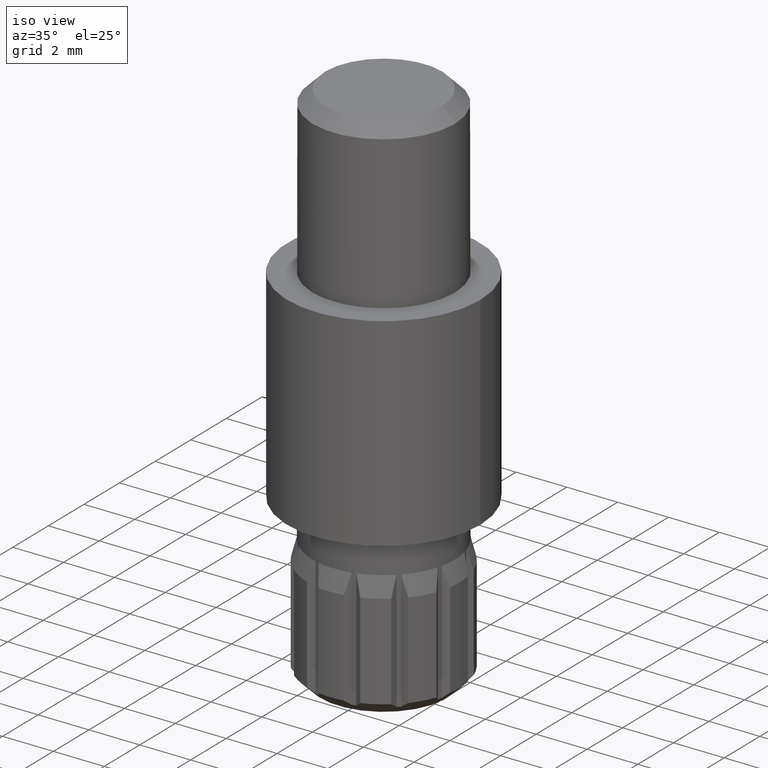
[diagram: clean part render]
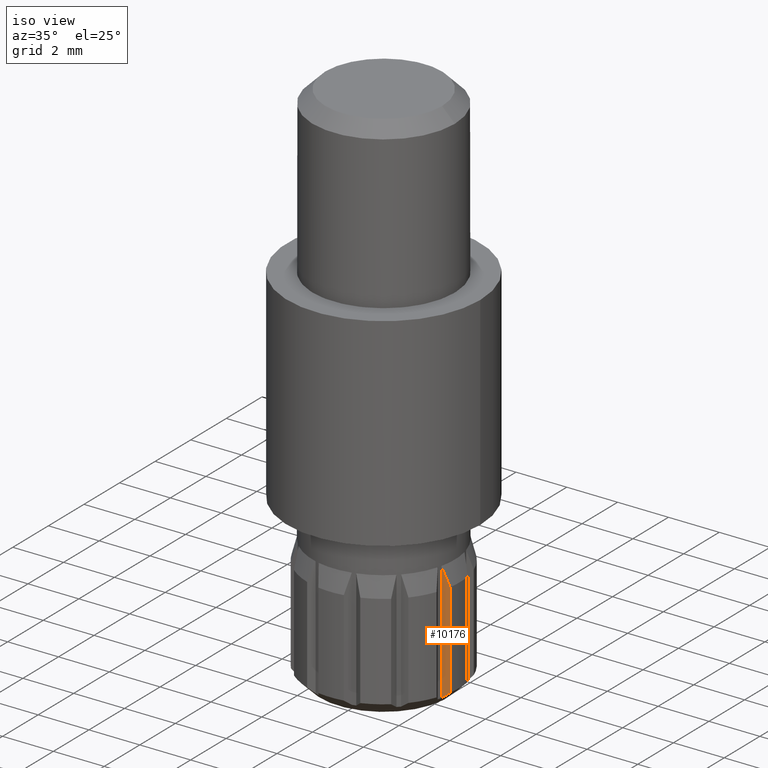
[diagram: same view with one face highlighted and labeled with its STEP entity id]
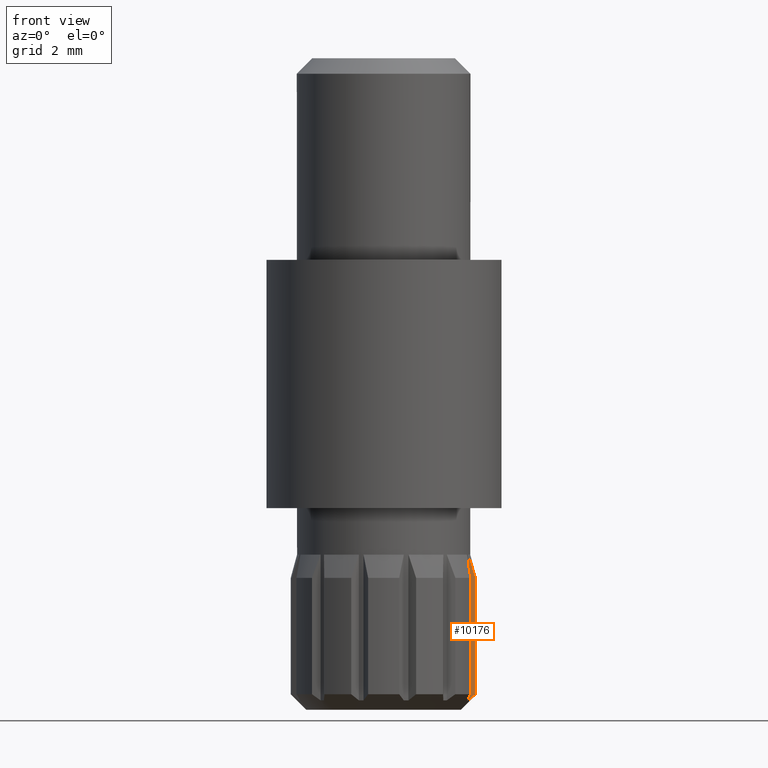
[diagram: same view with one face highlighted and labeled with its STEP entity id]
A machine part, iso view. The second image highlights one B-rep face of the part: STEP entity #10176.
A second angle (front view) of the same face is appended — the face is thin or edge-on in the first view.
In plain terms, the highlighted planar face has unit normal (0.5388, -0.8424, 0).
Its self-contained STEP definition (entity closure, byte-faithful):
#347 = CARTESIAN_POINT ( 'NONE',  ( 2.804051323932180040, -0.5984870776362886113, 4.751060318361801649 ) ) ;
#743 = EDGE_CURVE ( 'NONE', #9344, #5528, #5308, .T. ) ;
#1576 = CARTESIAN_POINT ( 'NONE',  ( 2.723508766279261639, -0.6500000000000093481, 0.2999999999999996003 ) ) ;
#1739 = CARTESIAN_POINT ( 'NONE',  ( 2.958039891549807177, -0.5000000000000102141, 0.4999999999999998890 ) ) ;
#1859 = EDGE_CURVE ( 'NONE', #2254, #3543, #6804, .T. ) ;
#1892 = EDGE_LOOP ( 'NONE', ( #5671, #9853, #8573, #2732 ) ) ;
#2254 = VERTEX_POINT ( 'NONE', #9921 ) ;
#2732 = ORIENTED_EDGE ( 'NONE', *, *, #743, .F. ) ;
#2816 = CARTESIAN_POINT ( 'NONE',  ( 2.802577053737539181, -0.5994299824594375714, 0.3651688080806904657 ) ) ;
#2828 = AXIS2_PLACEMENT_3D ( 'NONE', #4076, #9857, #9814 ) ;
#2994 = PLANE ( 'NONE',  #2828 ) ;
#3217 = DIRECTION ( 'NONE',  ( 0.000000000000000000, 0.000000000000000000, -1.000000000000000000 ) ) ;
#3307 = CARTESIAN_POINT ( 'NONE',  ( 2.723508766279262083, -0.6500000000000094591, 5.000000000000000000 ) ) ;
#3543 = VERTEX_POINT ( 'NONE', #1576 ) ;
#4076 = CARTESIAN_POINT ( 'NONE',  ( 2.723508766279262083, -0.6500000000000094591, 5.000000000000000000 ) ) ;
#4346 = EDGE_CURVE ( 'NONE', #2254, #9344, #10858, .T. ) ;
#4380 = FACE_OUTER_BOUND ( 'NONE', #1892, .T. ) ;
#4398 = DIRECTION ( 'NONE',  ( 0.000000000000000000, 0.000000000000000000, -1.000000000000000000 ) ) ;
#5191 = CARTESIAN_POINT ( 'NONE',  ( 2.723508766279262527, -0.6500000000000095701, 5.000000000000000000 ) ) ;
#5308 = LINE ( 'NONE', #8362, #11134 ) ;
#5528 = VERTEX_POINT ( 'NONE', #12370 ) ;
#5671 = ORIENTED_EDGE ( 'NONE', *, *, #4346, .F. ) ;
#6101 = CARTESIAN_POINT ( 'NONE',  ( 2.881956642263980406, -0.5486608648626545293, 4.500908567543602246 ) ) ;
#6804 = LINE ( 'NONE', #3307, #7572 ) ;
#6991 = CARTESIAN_POINT ( 'NONE',  ( 2.958039891549807177, -0.5000000000000102141, 4.250000000000000000 ) ) ;
#7572 = VECTOR ( 'NONE', #3217, 1000.000000000000000 ) ;
#8362 = CARTESIAN_POINT ( 'NONE',  ( 2.958039891549806732, -0.5000000000000102141, 5.000000000000000000 ) ) ;
#8573 = ORIENTED_EDGE ( 'NONE', *, *, #11367, .F. ) ;
#8609 = CARTESIAN_POINT ( 'NONE',  ( 2.880694141569247524, -0.5494683274286209507, 0.4319807832766580646 ) ) ;
#8649 = CARTESIAN_POINT ( 'NONE',  ( 2.723508766279261639, -0.6500000000000093481, 0.2999999999999996003 ) ) ;
#9061 = CARTESIAN_POINT ( 'NONE',  ( 2.958039891549807177, -0.5000000000000102141, 4.250000000000000000 ) ) ;
#9344 = VERTEX_POINT ( 'NONE', #6991 ) ;
#9814 = DIRECTION ( 'NONE',  ( 0.8424343191017378274, 0.5387990515949254711, 0.000000000000000000 ) ) ;
#9853 = ORIENTED_EDGE ( 'NONE', *, *, #1859, .T. ) ;
#9857 = DIRECTION ( 'NONE',  ( 0.5387990515949255821, -0.8424343191017379384, 0.000000000000000000 ) ) ;
#9921 = CARTESIAN_POINT ( 'NONE',  ( 2.723508766279262527, -0.6500000000000095701, 5.000000000000000000 ) ) ;
#10176 = ADVANCED_FACE ( 'NONE', ( #4380 ), #2994, .T. ) ;
#10858 = B_SPLINE_CURVE_WITH_KNOTS ( 'NONE', 3,
 ( #5191, #347, #6101, #9061 ),
 .UNSPECIFIED., .F., .F.,
 ( 4, 4 ),
 ( 2.142295073324890902E-07, 0.0008002172599519528527 ),
 .UNSPECIFIED. ) ;
#11134 = VECTOR ( 'NONE', #4398, 1000.000000000000000 ) ;
#11367 = EDGE_CURVE ( 'NONE', #5528, #3543, #12555, .T. ) ;
#12370 = CARTESIAN_POINT ( 'NONE',  ( 2.958039891549807177, -0.5000000000000102141, 0.4999999999999998890 ) ) ;
#12555 = B_SPLINE_CURVE_WITH_KNOTS ( 'NONE', 3,
 ( #1739, #8609, #2816, #8649 ),
 .UNSPECIFIED., .F., .F.,
 ( 4, 4 ),
 ( 2.954317623281936935E-07, 0.0003430852342952688135 ),
 .UNSPECIFIED. ) ;